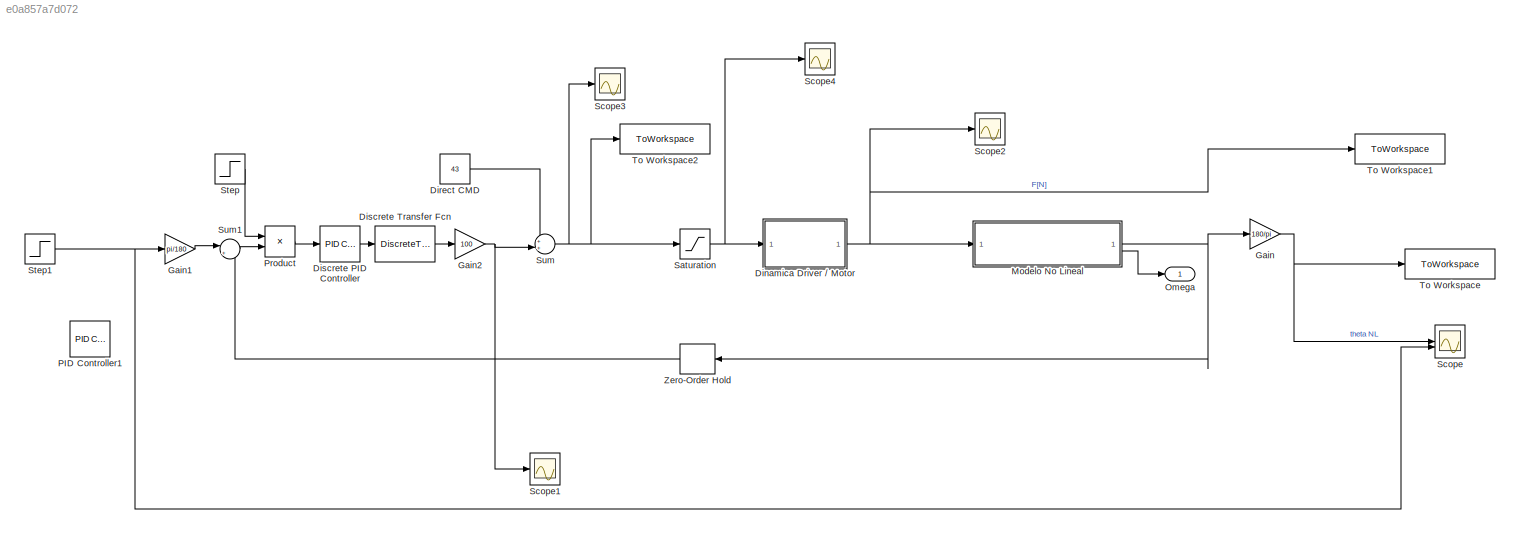
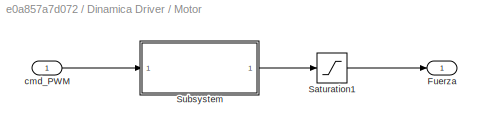
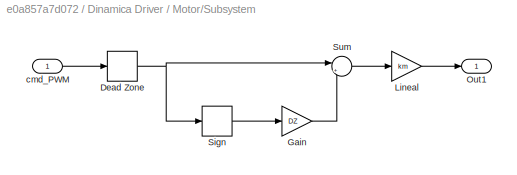
MODEL slx_e0a857a7d072
KIND model
CONFIG AbsTol = auto
CONFIG EnableMultiTasking = off
CONFIG FixedStep = auto
CONFIG MaxStep = 0.01
CONFIG MinStep = auto
CONFIG RelTol = 1e-3
CONFIG SampleTimeConstraint = Unconstrained
CONFIG SolverName = VariableStepAuto
CONFIG StartTime = 0.0
CONFIG StopTime = 30
BLOCK [SubSystem] Dinamica Driver // Motor
BLOCK [Outport] Dinamica Driver // Motor/Fuerza
BLOCK [Saturate] Dinamica Driver // Motor/Saturation1
  UpperLimit = MAX_PWM
BLOCK [SubSystem] Dinamica Driver // Motor/Subsystem
BLOCK [DeadZone] Dinamica Driver // Motor/Subsystem/Dead Zone
  LowerValue = -DZ
  UpperValue = DZ
BLOCK [Gain] Dinamica Driver // Motor/Subsystem/Gain
  Gain = DZ
BLOCK [Gain] Dinamica Driver // Motor/Subsystem/Lineal
  Gain = km
BLOCK [Outport] Dinamica Driver // Motor/Subsystem/Out1
BLOCK [Signum] Dinamica Driver // Motor/Subsystem/Sign
BLOCK [Sum] Dinamica Driver // Motor/Subsystem/Sum
  Inputs = |++
BLOCK [Inport] Dinamica Driver // Motor/Subsystem/cmd_PWM
BLOCK [Inport] Dinamica Driver // Motor/cmd_PWM
BLOCK [Constant] Direct CMD
  Value = 43
BLOCK [Reference] Discrete PID Controller  REF=slpidlib/PID Controller
  LibrarySourceBlock = simulink/Discrete/Discrete PID Controller
  SourceBlock = slpidlib/PID Controller
  SourceType = PID 1dof
BLOCK [DiscreteTransferFcn] Discrete Transfer Fcn
  Denominator = RedDen
  InputPortMap = u0
  Numerator = RedNum
BLOCK [Gain] Gain
  Gain = 180/pi
BLOCK [Gain] Gain1
  Gain = pi/180
BLOCK [Gain] Gain2
  Gain = 100
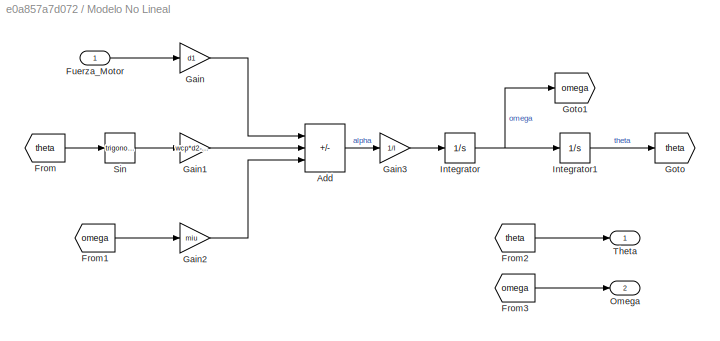
BLOCK [SubSystem] Modelo No Lineal
BLOCK [Sum] Modelo No Lineal/Add
  IconShape = rectangular
  Inputs = ++-
BLOCK [From] Modelo No Lineal/From
  GotoTag = theta
BLOCK [From] Modelo No Lineal/From1
  GotoTag = omega
BLOCK [From] Modelo No Lineal/From2
  GotoTag = theta
BLOCK [From] Modelo No Lineal/From3
  GotoTag = omega
BLOCK [Inport] Modelo No Lineal/Fuerza_Motor
BLOCK [Gain] Modelo No Lineal/Gain
  Gain = d1
  Multiplication = Matrix(K*u)
BLOCK [Gain] Modelo No Lineal/Gain1
  Gain = wcp*d2-wm*d1-wb*e
  Multiplication = Matrix(K*u)
BLOCK [Gain] Modelo No Lineal/Gain2
  Gain = miu
  Multiplication = Matrix(K*u)
BLOCK [Gain] Modelo No Lineal/Gain3
  Gain = 1/I
BLOCK [Goto] Modelo No Lineal/Goto
  GotoTag = theta
BLOCK [Goto] Modelo No Lineal/Goto1
  GotoTag = omega
BLOCK [Integrator] Modelo No Lineal/Integrator
BLOCK [Integrator] Modelo No Lineal/Integrator1
BLOCK [Outport] Modelo No Lineal/Omega
  Port = 2
BLOCK [Trigonometry] Modelo No Lineal/Sin
BLOCK [Outport] Modelo No Lineal/Theta
BLOCK [Outport] Omega
BLOCK [Reference] PID Controller1  REF=slpidlib/PID Controller
  LibrarySourceBlock = simulink/Continuous/PID Controller
  SourceBlock = slpidlib/PID Controller
  SourceType = PID 1dof
BLOCK [Product] Product
BLOCK [Saturate] Saturation
  LowerLimit = 0
  UpperLimit = MAX_PWM
BLOCK [Scope] Scope
  Floating = off
  NumInputPorts = 2
  ScopeSpecificationString = Simulink.scopes.TimeScopeBlockCfg('CurrentConfiguration', extmgr.ConfigurationSet(extmgr.Configuration('Core','General UI',true),extmgr.Configuration('Core','Source UI',true),extmgr.Configuration('Sources','WiredSimulink',true,'DataLoggingVariableName','ScopeData1'),extmgr.Configuration('Visuals','Time Domain',true,'SerializedDisplays',{struct('MinYLimReal','-19.53765','MaxYLimReal','175.83883','Y...<+1385ch>
BLOCK [Scope] Scope1
  Floating = off
  NumInputPorts = 1
  ScopeSpecificationString = Simulink.scopes.TimeScopeBlockCfg('CurrentConfiguration', extmgr.ConfigurationSet(extmgr.Configuration('Core','General UI',true),extmgr.Configuration('Core','Source UI',true),extmgr.Configuration('Sources','WiredSimulink',true,'DataLoggingVariableName','ScopeData2'),extmgr.Configuration('Visuals','Time Domain',true,'SerializedDisplays',{struct('MinYLimReal','-4071.95711','MaxYLimReal','2594.22714'...<+1386ch>
BLOCK [Scope] Scope2
  Floating = off
  NumInputPorts = 1
  ScopeSpecificationString = Simulink.scopes.TimeScopeBlockCfg('CurrentConfiguration', extmgr.ConfigurationSet(extmgr.Configuration('Core','General UI',true),extmgr.Configuration('Core','Source UI',true),extmgr.Configuration('Sources','WiredSimulink',true),extmgr.Configuration('Visuals','Time Domain',true,'SerializedDisplays',{struct('MinYLimReal','-0.00369','MaxYLimReal','0.03319','YLabelReal','','MinYLimMag','0.00000','MaxY...<+1353ch>
BLOCK [Scope] Scope3
  Floating = off
  NumInputPorts = 1
  ScopeSpecificationString = Simulink.scopes.TimeScopeBlockCfg('CurrentConfiguration', extmgr.ConfigurationSet(extmgr.Configuration('Core','General UI',true),extmgr.Configuration('Core','Source UI',true),extmgr.Configuration('Sources','WiredSimulink',true,'DataLoggingVariableName','ScopeData3'),extmgr.Configuration('Visuals','Time Domain',true,'SerializedDisplays',{struct('MinYLimReal','-4028.95711','MaxYLimReal','2637.22714'...<+1384ch>
BLOCK [Scope] Scope4
  Floating = off
  NumInputPorts = 1
  ScopeSpecificationString = Simulink.scopes.TimeScopeBlockCfg('CurrentConfiguration', extmgr.ConfigurationSet(extmgr.Configuration('Core','General UI',true),extmgr.Configuration('Core','Source UI',true),extmgr.Configuration('Sources','WiredSimulink',true,'DataLoggingVariableName','ScopeData4'),extmgr.Configuration('Visuals','Time Domain',true,'SerializedDisplays',{struct('MinYLimReal','-3.29728','MaxYLimReal','56.42876','YLa...<+1392ch>
BLOCK [Step] Step
  SampleTime = 0
  Time = 5
BLOCK [Step] Step1
  After = 120
  SampleTime = 0
  Time = 5
BLOCK [Sum] Sum
  Inputs = ++|
BLOCK [Sum] Sum1
  Inputs = |+-
BLOCK [ToWorkspace] To Workspace
  FixptAsFi = on
  MaxDataPoints = inf
  SampleTime = -1
  SaveFormat = Timeseries
  VariableName = nl_response
BLOCK [ToWorkspace] To Workspace1
  FixptAsFi = on
  MaxDataPoints = inf
  SampleTime = -1
  SaveFormat = Timeseries
  VariableName = nl_action
BLOCK [ToWorkspace] To Workspace2
  FixptAsFi = on
  MaxDataPoints = inf
  SampleTime = -1
  SaveFormat = Timeseries
  VariableName = nl_ref
BLOCK [ZeroOrderHold] Zero-Order Hold
  NameLocation = top
  SampleTime = 1e-3
LINE Dinamica Driver // Motor/Saturation1:1 -> Dinamica Driver // Motor/Fuerza:1
NET Dinamica Driver // Motor/Subsystem/Dead Zone:1 -> Dinamica Driver // Motor/Subsystem/Sign:1, Dinamica Driver // Motor/Subsystem/Sum:1
LINE Dinamica Driver // Motor/Subsystem/Gain:1 -> Dinamica Driver // Motor/Subsystem/Sum:2
LINE Dinamica Driver // Motor/Subsystem/Lineal:1 -> Dinamica Driver // Motor/Subsystem/Out1:1
LINE Dinamica Driver // Motor/Subsystem/Sign:1 -> Dinamica Driver // Motor/Subsystem/Gain:1
LINE Dinamica Driver // Motor/Subsystem/Sum:1 -> Dinamica Driver // Motor/Subsystem/Lineal:1
LINE Dinamica Driver // Motor/Subsystem/cmd_PWM:1 -> Dinamica Driver // Motor/Subsystem/Dead Zone:1
LINE Dinamica Driver // Motor/Subsystem:1 -> Dinamica Driver // Motor/Saturation1:1
LINE Dinamica Driver // Motor/cmd_PWM:1 -> Dinamica Driver // Motor/Subsystem:1
NET Dinamica Driver // Motor:1 -> Modelo No Lineal:1, Scope2:1, To Workspace1:1
LINE Direct CMD:1 -> Sum:1
LINE Discrete PID Controller:1 -> Discrete Transfer Fcn:1
LINE Discrete Transfer Fcn:1 -> Gain2:1
LINE Gain1:1 -> Sum1:1
NET Gain2:1 -> Scope1:1, Sum:2
NET Gain:1 -> Scope:1, To Workspace:1
LINE Modelo No Lineal/Add:1 -> Modelo No Lineal/Gain3:1
LINE Modelo No Lineal/From1:1 -> Modelo No Lineal/Gain2:1
LINE Modelo No Lineal/From2:1 -> Modelo No Lineal/Theta:1
LINE Modelo No Lineal/From3:1 -> Modelo No Lineal/Omega:1
LINE Modelo No Lineal/From:1 -> Modelo No Lineal/Sin:1
LINE Modelo No Lineal/Fuerza_Motor:1 -> Modelo No Lineal/Gain:1
LINE Modelo No Lineal/Gain1:1 -> Modelo No Lineal/Add:2
LINE Modelo No Lineal/Gain2:1 -> Modelo No Lineal/Add:3
LINE Modelo No Lineal/Gain3:1 -> Modelo No Lineal/Integrator:1
LINE Modelo No Lineal/Gain:1 -> Modelo No Lineal/Add:1
LINE Modelo No Lineal/Integrator1:1 -> Modelo No Lineal/Goto:1
NET Modelo No Lineal/Integrator:1 -> Modelo No Lineal/Goto1:1, Modelo No Lineal/Integrator1:1
LINE Modelo No Lineal/Sin:1 -> Modelo No Lineal/Gain1:1
NET Modelo No Lineal:1 -> Gain:1, Zero-Order Hold:1
LINE Modelo No Lineal:2 -> Omega:1
LINE Product:1 -> Discrete PID Controller:1
NET Saturation:1 -> Dinamica Driver // Motor:1, Scope4:1
NET Step1:1 -> Gain1:1, Scope:2
LINE Step:1 -> Product:1
LINE Sum1:1 -> Product:2
NET Sum:1 -> Saturation:1, Scope3:1, To Workspace2:1
LINE Zero-Order Hold:1 -> Sum1:2
note: NET lines group one-source signal fan-out (src -> all destinations, sorted); 1:1 wires keep LINE
